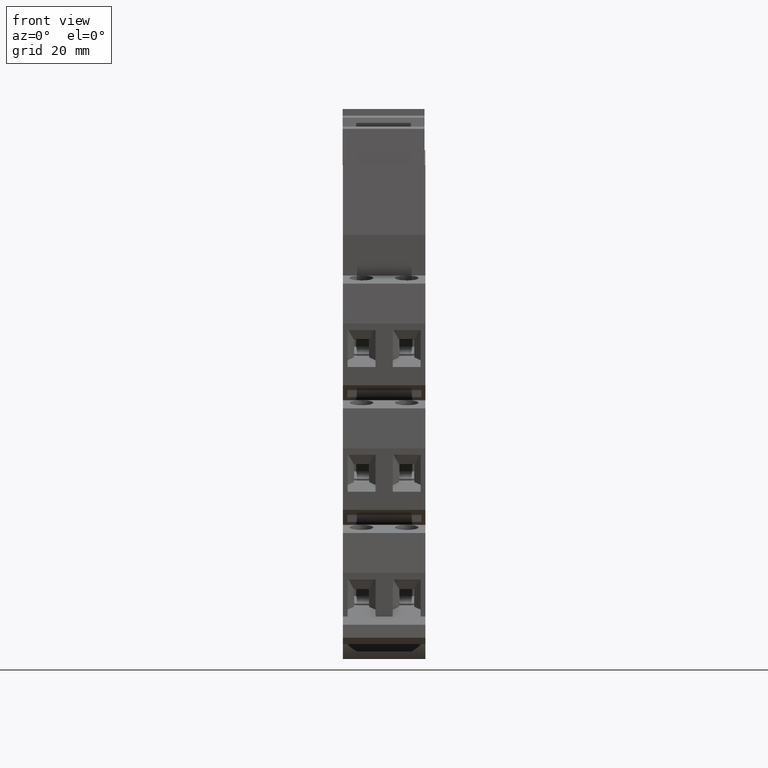
[diagram: clean part render]
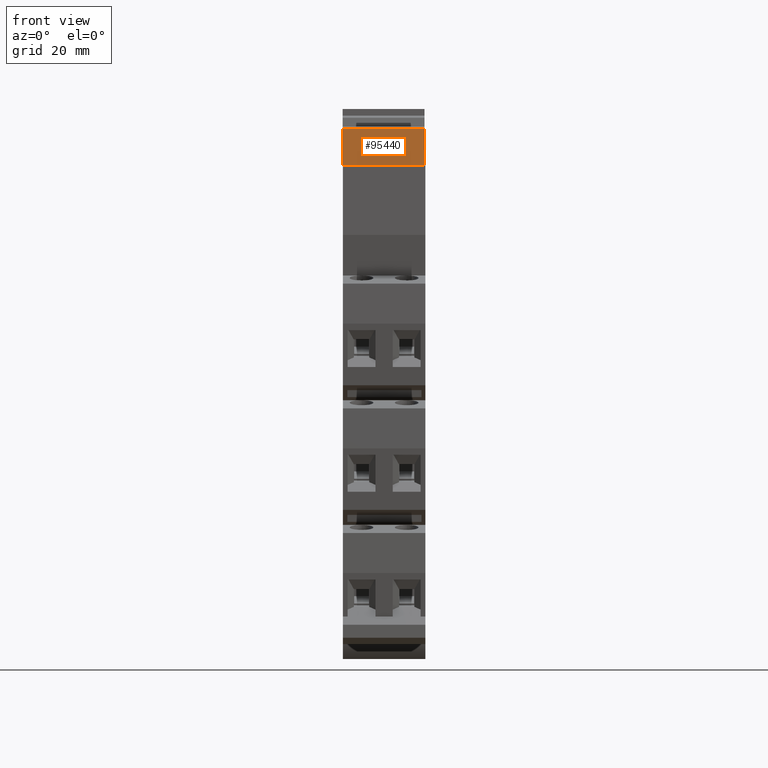
[diagram: same view with one face highlighted and labeled with its STEP entity id]
A machine part, front view. The second image highlights one B-rep face of the part: STEP entity #95440.
In plain terms, the highlighted planar face has unit normal (-0, -1, -0).
Its self-contained STEP definition (entity closure, byte-faithful):
#6460=CARTESIAN_POINT('',(22.2071599998067,74.1500000000194,
-0.800000000002909));
#6470=VERTEX_POINT('',#6460);
#13680=CARTESIAN_POINT('',(22.2071599998063,74.1500000000194,
-0.749999998442625));
#13690=VERTEX_POINT('',#13680);
#13720=CARTESIAN_POINT('',(22.2071599999932,74.1500000000465,
-21.2999999125512));
#13730=DIRECTION('',(9.0965102661587E-12,1.3174329277823E-12,-1.));
#13740=VECTOR('',#13730,1.);
#13750=LINE('',#13720,#13740);
#13760=EDGE_CURVE('',#13690,#6470,#13750,.T.);
#14410=CARTESIAN_POINT('',(22.2071599998067,74.1500000000195,
-0.800000000002907));
#14420=DIRECTION('',(9.09651026615862E-12,-5.70977035849558E-25,-1.));
#14430=VECTOR('',#14420,1.);
#14440=LINE('',#14410,#14430);
#14450=CARTESIAN_POINT('',(22.2071599999318,74.1500000000195,
-14.5499999984426));
#14460=VERTEX_POINT('',#14450);
#14470=EDGE_CURVE('',#6470,#14460,#14440,.T.);
#71340=CARTESIAN_POINT('',(22.2071599999322,80.2681561024641,
-14.5499999984346));
#71350=VERTEX_POINT('',#71340);
#71380=CARTESIAN_POINT('',(22.2071599999936,80.268156102473,
-21.2999999125431));
#71390=DIRECTION('',(-9.0965102661587E-12,-1.3174329277823E-12,1.));
#71400=VECTOR('',#71390,1.);
#71410=LINE('',#71380,#71400);
#71420=CARTESIAN_POINT('',(22.2071599998066,80.2681561024459,
-0.749999998434564));
#71430=VERTEX_POINT('',#71420);
#71440=EDGE_CURVE('',#71350,#71430,#71410,.T.);
#95220=CARTESIAN_POINT('',(22.2071599999323,81.4500000000375,
-14.549999998433));
#95230=DIRECTION('',(1.,-6.26867471236785E-14,9.09651026615862E-12));
#95240=DIRECTION('',(6.26867471116945E-14,1.,1.31743292778287E-12));
#95250=AXIS2_PLACEMENT_3D('',#95220,#95230,#95240);
#95260=PLANE('',#95250);
#95270=CARTESIAN_POINT('',(22.2071599999271,3.24149596053758E-11,
-14.5499999985403));
#95280=DIRECTION('',(-6.26867471116945E-14,-1.,-1.31743292778287E-12));
#95290=VECTOR('',#95280,1.);
#95300=LINE('',#95270,#95290);
#95310=EDGE_CURVE('',#71350,#14460,#95300,.T.);
#95320=ORIENTED_EDGE('',*,*,#95310,.F.);
#95330=ORIENTED_EDGE('',*,*,#14470,.T.);
#95340=ORIENTED_EDGE('',*,*,#13760,.T.);
#95350=CARTESIAN_POINT('',(22.2071599998016,1.42392764246324E-11,
-0.749999998540311));
#95360=DIRECTION('',(6.26867471116945E-14,1.,1.31743292778287E-12));
#95370=VECTOR('',#95360,1.);
#95380=LINE('',#95350,#95370);
#95390=EDGE_CURVE('',#13690,#71430,#95380,.T.);
#95400=ORIENTED_EDGE('',*,*,#95390,.F.);
#95410=ORIENTED_EDGE('',*,*,#71440,.T.);
#95420=EDGE_LOOP('',(#95410,#95400,#95340,#95330,#95320));
#95430=FACE_OUTER_BOUND('',#95420,.T.);
#95440=ADVANCED_FACE('',(#95430),#95260,.T.);